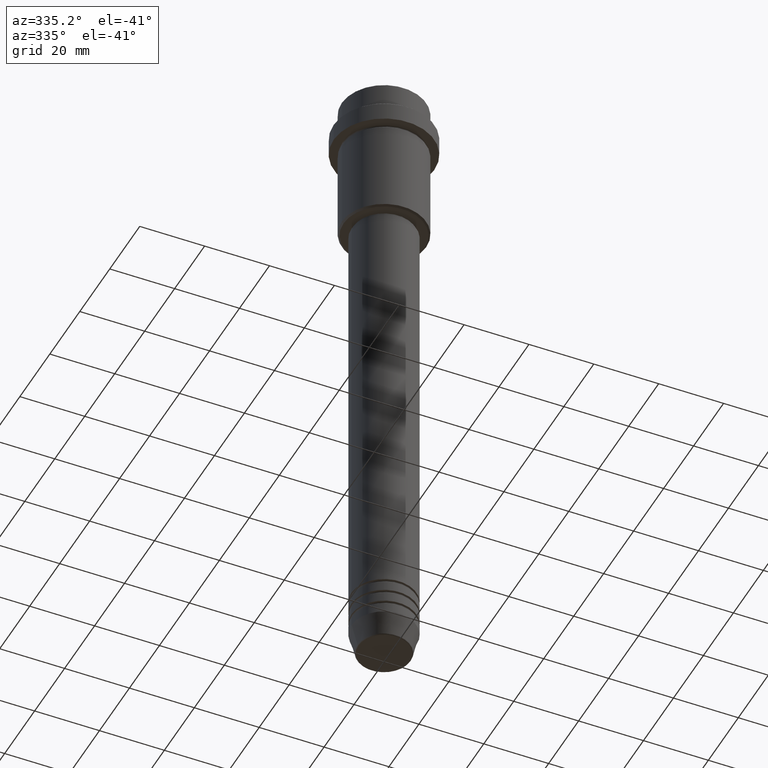
[diagram: clean part render]
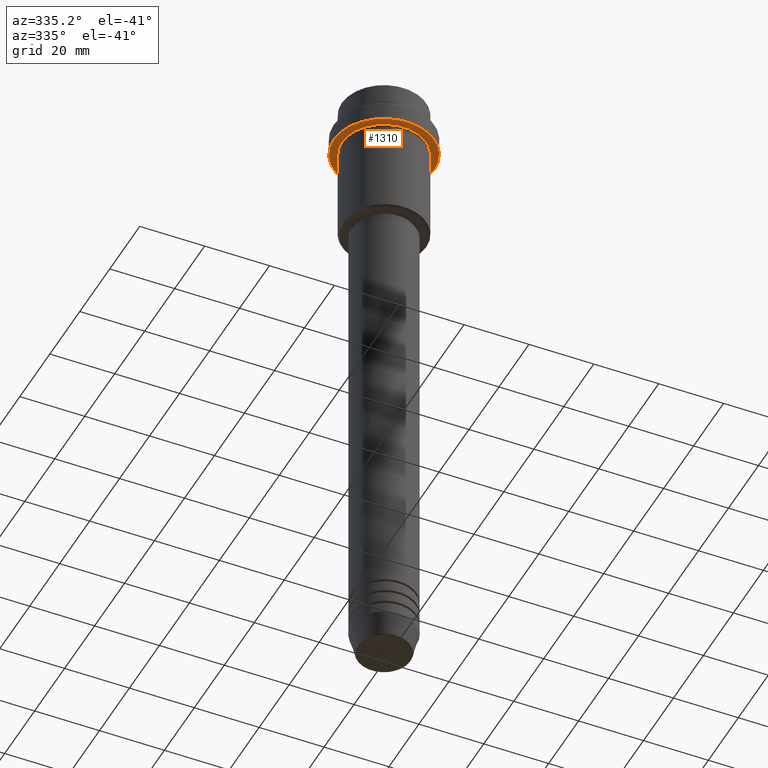
[diagram: same view with one face highlighted and labeled with its STEP entity id]
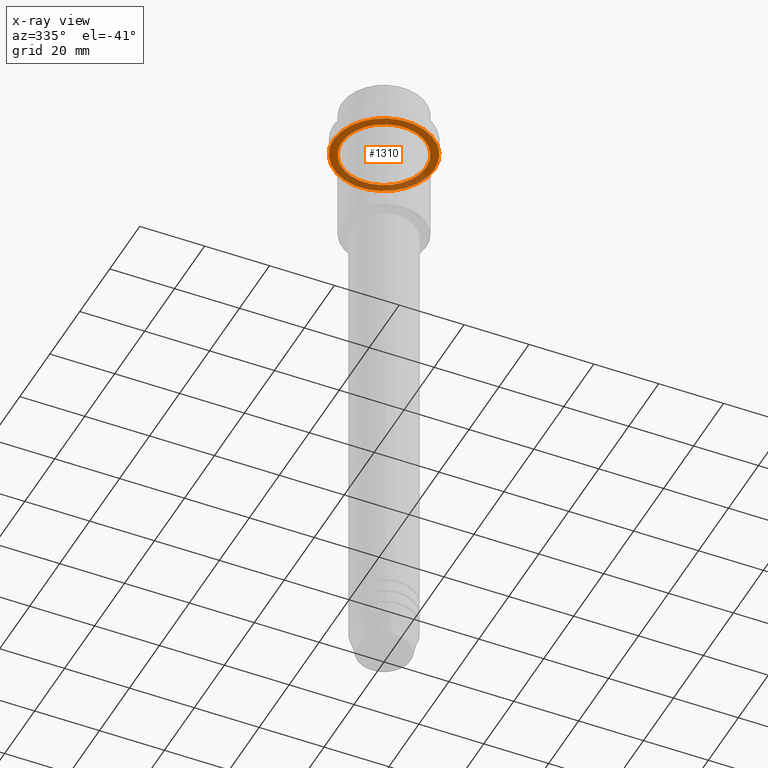
[diagram: x-ray of the same camera — body ghosted, the highlighted face saturated]
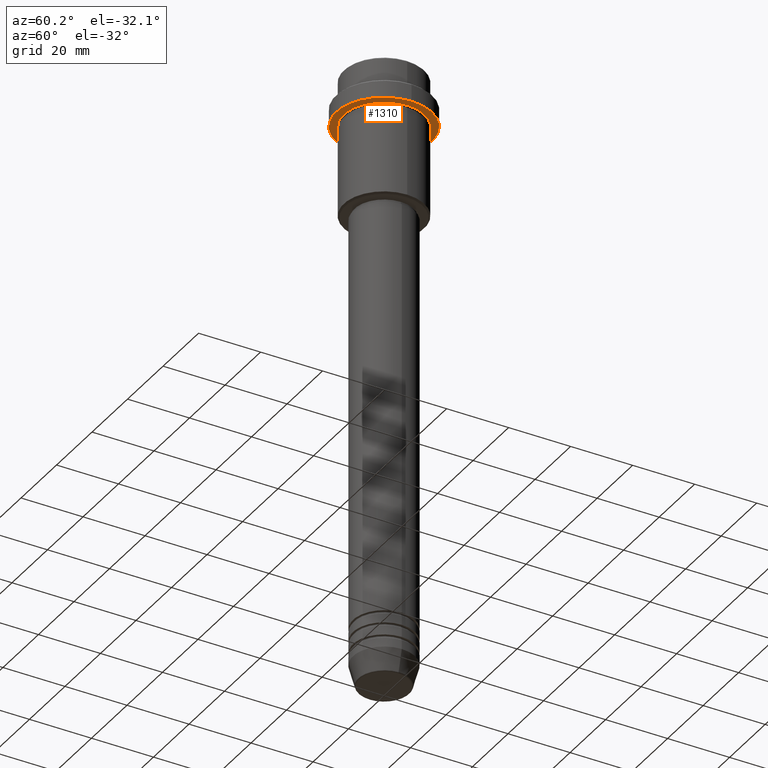
[diagram: same view with one face highlighted and labeled with its STEP entity id]
A machine part, auxiliary view. The second image highlights one B-rep face of the part: STEP entity #1310.
The next image is the same camera in x-ray: the body ghosted, the highlighted face saturated — about 29% of this face is hidden behind the body in this view.
A second angle (auxiliary view) of the same face is appended — the face is thin or edge-on in the first view.
In plain terms, the highlighted planar face has unit normal (0, 0, -1).
Its self-contained STEP definition (entity closure, byte-faithful):
#21 = EDGE_CURVE ( 'NONE', #508, #513, #952, .T. ) ;
#61 = EDGE_CURVE ( 'NONE', #393, #454, #130, .T. ) ;
#75 = DIRECTION ( 'NONE',  ( 0.000000000000000000, 0.000000000000000000, -1.000000000000000000 ) ) ;
#98 = DIRECTION ( 'NONE',  ( -0.000000000000000000, -0.000000000000000000, 1.000000000000000000 ) ) ;
#109 = CARTESIAN_POINT ( 'NONE',  ( -12.99999999999999467, 0.000000000000000000, -15.00000000000000000 ) ) ;
#130 = CIRCLE ( 'NONE', #317, 12.99999999999999467 ) ;
#131 = CARTESIAN_POINT ( 'NONE',  ( -15.50000000000000000, 1.898202538678397557E-15, -15.00000000000000178 ) ) ;
#135 = AXIS2_PLACEMENT_3D ( 'NONE', #975, #98, #1275 ) ;
#213 = ORIENTED_EDGE ( 'NONE', *, *, #881, .T. ) ;
#303 = DIRECTION ( 'NONE',  ( -1.000000000000000000, 0.000000000000000000, 0.000000000000000000 ) ) ;
#317 = AXIS2_PLACEMENT_3D ( 'NONE', #1340, #1121, #1127 ) ;
#322 = DIRECTION ( 'NONE',  ( -0.000000000000000000, -0.000000000000000000, 1.000000000000000000 ) ) ;
#392 = FACE_BOUND ( 'NONE', #1167, .T. ) ;
#393 = VERTEX_POINT ( 'NONE', #1401 ) ;
#411 = CARTESIAN_POINT ( 'NONE',  ( 0.000000000000000000, 0.000000000000000000, -15.00000000000000000 ) ) ;
#454 = VERTEX_POINT ( 'NONE', #109 ) ;
#508 = VERTEX_POINT ( 'NONE', #791 ) ;
#513 = VERTEX_POINT ( 'NONE', #131 ) ;
#520 = DIRECTION ( 'NONE',  ( -0.000000000000000000, -0.000000000000000000, 1.000000000000000000 ) ) ;
#593 = CIRCLE ( 'NONE', #662, 12.99999999999999467 ) ;
#624 = CARTESIAN_POINT ( 'NONE',  ( 0.000000000000000000, 15.50000000000000000, -15.00000000000000000 ) ) ;
#662 = AXIS2_PLACEMENT_3D ( 'NONE', #411, #322, #303 ) ;
#787 = EDGE_LOOP ( 'NONE', ( #1173, #1371 ) ) ;
#791 = CARTESIAN_POINT ( 'NONE',  ( 15.50000000000000000, 0.000000000000000000, -15.00000000000000178 ) ) ;
#843 = ORIENTED_EDGE ( 'NONE', *, *, #61, .T. ) ;
#850 = EDGE_CURVE ( 'NONE', #513, #508, #1344, .T. ) ;
#861 = FACE_OUTER_BOUND ( 'NONE', #787, .T. ) ;
#867 = CARTESIAN_POINT ( 'NONE',  ( 0.000000000000000000, 0.000000000000000000, -15.00000000000000178 ) ) ;
#881 = EDGE_CURVE ( 'NONE', #454, #393, #593, .T. ) ;
#926 = AXIS2_PLACEMENT_3D ( 'NONE', #867, #520, #1200 ) ;
#952 = CIRCLE ( 'NONE', #926, 15.50000000000000000 ) ;
#966 = DIRECTION ( 'NONE',  ( -1.000000000000000000, 0.000000000000000000, -0.000000000000000000 ) ) ;
#975 = CARTESIAN_POINT ( 'NONE',  ( 0.000000000000000000, 0.000000000000000000, -15.00000000000000178 ) ) ;
#1045 = AXIS2_PLACEMENT_3D ( 'NONE', #624, #75, #966 ) ;
#1121 = DIRECTION ( 'NONE',  ( -0.000000000000000000, -0.000000000000000000, 1.000000000000000000 ) ) ;
#1127 = DIRECTION ( 'NONE',  ( -1.000000000000000000, 0.000000000000000000, 0.000000000000000000 ) ) ;
#1167 = EDGE_LOOP ( 'NONE', ( #213, #843 ) ) ;
#1173 = ORIENTED_EDGE ( 'NONE', *, *, #21, .F. ) ;
#1200 = DIRECTION ( 'NONE',  ( 1.000000000000000000, 0.000000000000000000, 0.000000000000000000 ) ) ;
#1275 = DIRECTION ( 'NONE',  ( 1.000000000000000000, 0.000000000000000000, 0.000000000000000000 ) ) ;
#1293 = PLANE ( 'NONE',  #1045 ) ;
#1310 = ADVANCED_FACE ( 'NONE', ( #392, #861 ), #1293, .T. ) ;
#1340 = CARTESIAN_POINT ( 'NONE',  ( 0.000000000000000000, 0.000000000000000000, -15.00000000000000000 ) ) ;
#1344 = CIRCLE ( 'NONE', #135, 15.50000000000000000 ) ;
#1371 = ORIENTED_EDGE ( 'NONE', *, *, #850, .F. ) ;
#1401 = CARTESIAN_POINT ( 'NONE',  ( 12.99999999999999467, 1.592040838891558504E-15, -15.00000000000000000 ) ) ;